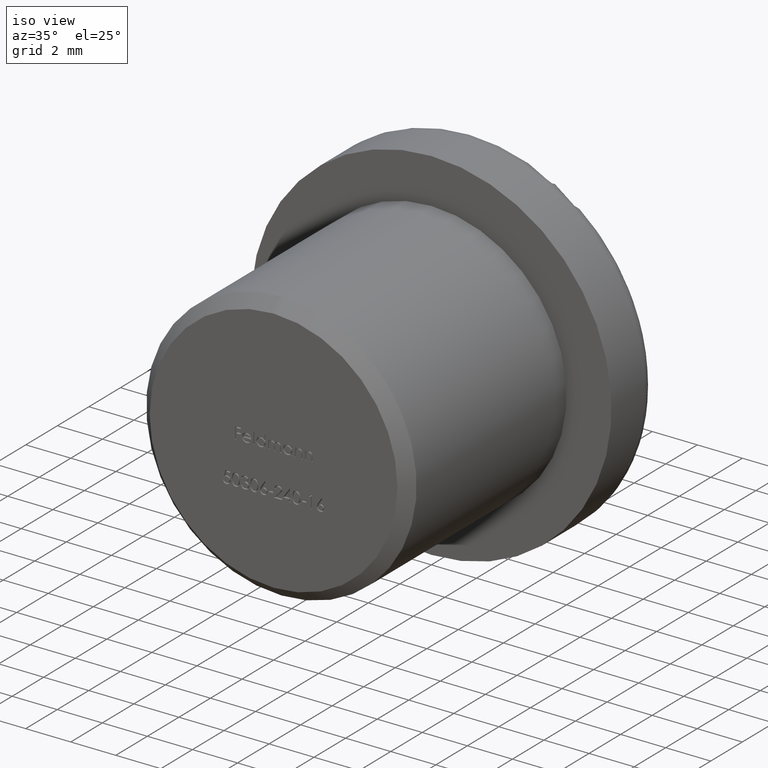
[diagram: clean part render]
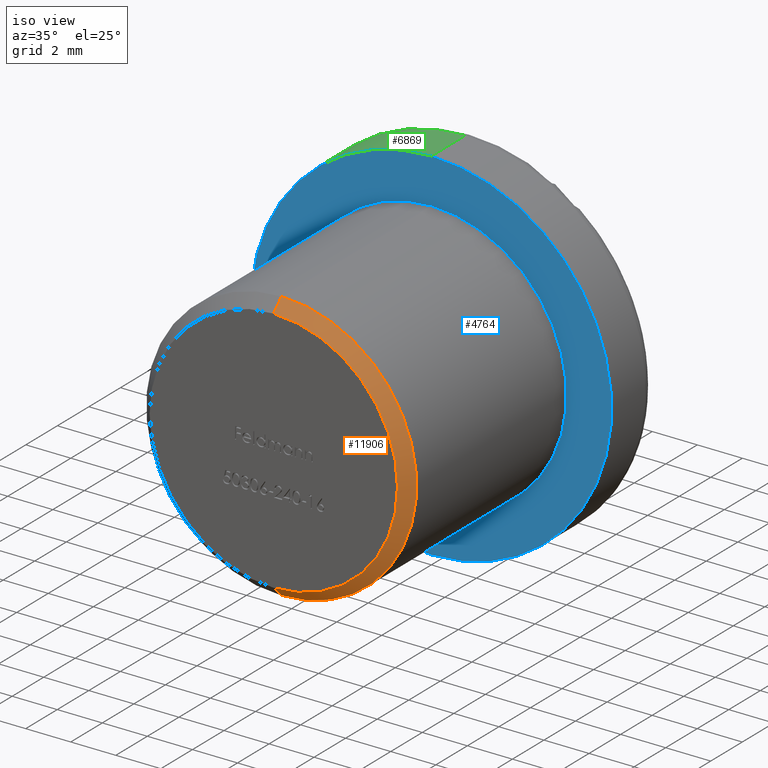
[diagram: same view with three faces highlighted in distinct colors, each labeled with its STEP entity id]
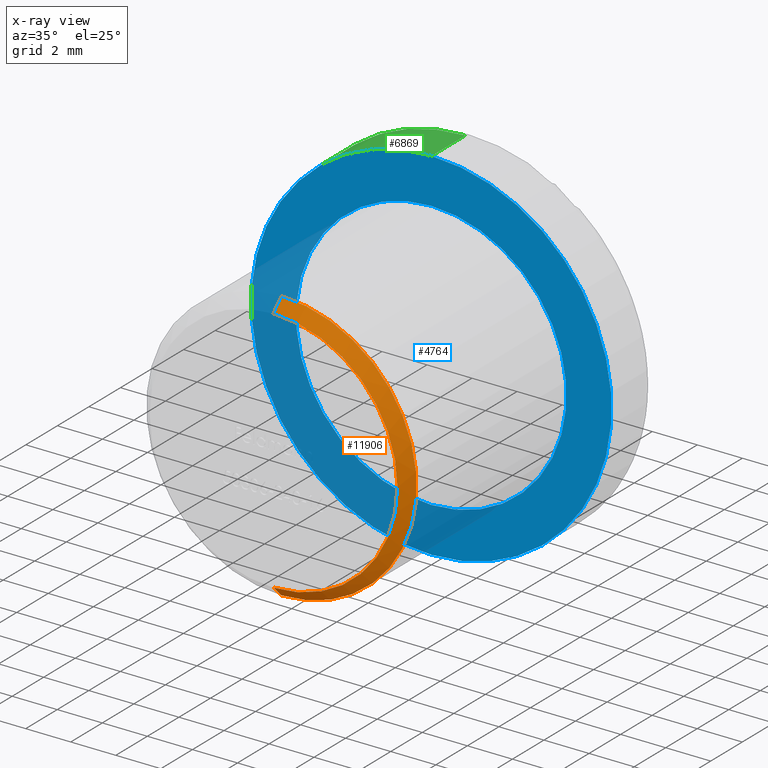
[diagram: x-ray of the same camera — body ghosted, the three highlighted faces saturated]
A machine part, iso view with three faces highlighted in distinct colors.
The next image is the same camera in x-ray (body ghosted, the three faces saturated) — at least one of them is partly hidden behind the body in this view.
Their STEP definitions:

[orange] entity #11906 — the highlighted conical surface has half-angle 45 deg.
#661 = VERTEX_POINT ( 'NONE', #1964 ) ;
#1562 = CARTESIAN_POINT ( 'NONE',  ( 0.0000000000000000000, 0.0000000000000000000, 5.500000000000000900 ) ) ;
#1799 = EDGE_CURVE ( 'NONE', #13992, #10031, #6250, .T. ) ;
#1964 = CARTESIAN_POINT ( 'NONE',  ( 7.347880794884119700E-016, 0.5000000000000030000, 6.000000000000000000 ) ) ;
#2244 = VECTOR ( 'NONE', #7391, 1000.000000000000100 ) ;
#3149 = ORIENTED_EDGE ( 'NONE', *, *, #7248, .F. ) ;
#3172 = AXIS2_PLACEMENT_3D ( 'NONE', #9606, #10791, #9501 ) ;
#3470 = CARTESIAN_POINT ( 'NONE',  ( 0.0000000000000000000, 0.5000000000000030000, 0.0000000000000000000 ) ) ;
#3807 = DIRECTION ( 'NONE',  ( 0.0000000000000000000, 1.000000000000000000, 0.0000000000000000000 ) ) ;
#3863 = EDGE_LOOP ( 'NONE', ( #12242, #13256, #8634, #3149 ) ) ;
#3931 = DIRECTION ( 'NONE',  ( 0.0000000000000000000, 0.7071067811865500200, 0.7071067811865451300 ) ) ;
#4116 = FACE_OUTER_BOUND ( 'NONE', #3863, .T. ) ;
#4397 = CONICAL_SURFACE ( 'NONE', #5898, 5.500000000000000900, 0.7853981633974447300 ) ;
#4434 = DIRECTION ( 'NONE',  ( 0.0000000000000000000, 0.0000000000000000000, -1.000000000000000000 ) ) ;
#4981 = DIRECTION ( 'NONE',  ( 0.0000000000000000000, 0.0000000000000000000, 1.000000000000000000 ) ) ;
#4993 = VERTEX_POINT ( 'NONE', #1562 ) ;
#5898 = AXIS2_PLACEMENT_3D ( 'NONE', #7320, #3807, #4981 ) ;
#6250 = LINE ( 'NONE', #7103, #2244 ) ;
#7103 = CARTESIAN_POINT ( 'NONE',  ( 6.735557395310443000E-016, 0.0000000000000000000, -5.500000000000000900 ) ) ;
#7248 = EDGE_CURVE ( 'NONE', #4993, #661, #11983, .T. ) ;
#7320 = CARTESIAN_POINT ( 'NONE',  ( 0.0000000000000000000, 0.0000000000000000000, 0.0000000000000000000 ) ) ;
#7391 = DIRECTION ( 'NONE',  ( 8.659560562354903300E-017, 0.7071067811865500200, -0.7071067811865451300 ) ) ;
#8634 = ORIENTED_EDGE ( 'NONE', *, *, #11612, .F. ) ;
#9238 = AXIS2_PLACEMENT_3D ( 'NONE', #3470, #14845, #4434 ) ;
#9501 = DIRECTION ( 'NONE',  ( 0.0000000000000000000, 0.0000000000000000000, -1.000000000000000000 ) ) ;
#9606 = CARTESIAN_POINT ( 'NONE',  ( 0.0000000000000000000, 0.0000000000000000000, 0.0000000000000000000 ) ) ;
#9690 = CARTESIAN_POINT ( 'NONE',  ( 0.0000000000000000000, 0.5000000000000030000, -6.000000000000000000 ) ) ;
#10031 = VERTEX_POINT ( 'NONE', #9690 ) ;
#10171 = CARTESIAN_POINT ( 'NONE',  ( 7.041719095097280900E-016, 0.0000000000000000000, -5.500000000000000900 ) ) ;
#10791 = DIRECTION ( 'NONE',  ( -0.0000000000000000000, -1.000000000000000000, -0.0000000000000000000 ) ) ;
#11492 = CIRCLE ( 'NONE', #9238, 6.000000000000000000 ) ;
#11612 = EDGE_CURVE ( 'NONE', #661, #10031, #11492, .T. ) ;
#11906 = ADVANCED_FACE ( 'NONE', ( #4116 ), #4397, .T. ) ;
#11983 = LINE ( 'NONE', #12099, #14324 ) ;
#12099 = CARTESIAN_POINT ( 'NONE',  ( 0.0000000000000000000, 0.0000000000000000000, 5.500000000000000900 ) ) ;
#12215 = CIRCLE ( 'NONE', #3172, 5.500000000000000900 ) ;
#12242 = ORIENTED_EDGE ( 'NONE', *, *, #12629, .F. ) ;
#12629 = EDGE_CURVE ( 'NONE', #13992, #4993, #12215, .T. ) ;
#13256 = ORIENTED_EDGE ( 'NONE', *, *, #1799, .T. ) ;
#13992 = VERTEX_POINT ( 'NONE', #10171 ) ;
#14324 = VECTOR ( 'NONE', #3931, 1000.000000000000100 ) ;
#14845 = DIRECTION ( 'NONE',  ( 0.0000000000000000000, 1.000000000000000000, 0.0000000000000000000 ) ) ;

[blue] entity #4764 — the highlighted planar face has unit normal (0, -1, -0).
#190 = PLANE ( 'NONE',  #3616 ) ;
#343 = DIRECTION ( 'NONE',  ( -0.0000000000000000000, -1.000000000000000000, -0.0000000000000000000 ) ) ;
#346 = ORIENTED_EDGE ( 'NONE', *, *, #7121, .T. ) ;
#452 = FACE_BOUND ( 'NONE', #6999, .T. ) ;
#962 = EDGE_CURVE ( 'NONE', #8084, #13981, #13905, .T. ) ;
#1143 = EDGE_CURVE ( 'NONE', #5689, #14756, #2445, .T. ) ;
#1179 = FACE_OUTER_BOUND ( 'NONE', #7856, .T. ) ;
#2128 = CARTESIAN_POINT ( 'NONE',  ( 0.0000000000000000000, 10.00000000000000000, 0.0000000000000000000 ) ) ;
#2331 = CARTESIAN_POINT ( 'NONE',  ( 9.797174393178825700E-016, 10.00000000000000000, 8.000000000000000000 ) ) ;
#2377 = CARTESIAN_POINT ( 'NONE',  ( 0.0000000000000000000, 10.00000000000000000, -6.000000000000000000 ) ) ;
#2445 = CIRCLE ( 'NONE', #5881, 6.000000000000000000 ) ;
#2769 = DIRECTION ( 'NONE',  ( 0.0000000000000000000, 0.0000000000000000000, -1.000000000000000000 ) ) ;
#2971 = CIRCLE ( 'NONE', #11552, 6.000000000000000000 ) ;
#3160 = CARTESIAN_POINT ( 'NONE',  ( 0.0000000000000000000, 10.00000000000000000, 0.0000000000000000000 ) ) ;
#3616 = AXIS2_PLACEMENT_3D ( 'NONE', #8329, #6953, #9299 ) ;
#4764 = ADVANCED_FACE ( 'NONE', ( #1179, #452 ), #190, .T. ) ;
#4824 = DIRECTION ( 'NONE',  ( 0.0000000000000000000, 0.0000000000000000000, -1.000000000000000000 ) ) ;
#5093 = AXIS2_PLACEMENT_3D ( 'NONE', #2128, #12635, #6931 ) ;
#5659 = CIRCLE ( 'NONE', #13413, 8.000000000000000000 ) ;
#5689 = VERTEX_POINT ( 'NONE', #2377 ) ;
#5881 = AXIS2_PLACEMENT_3D ( 'NONE', #8644, #7365, #2769 ) ;
#6931 = DIRECTION ( 'NONE',  ( 0.0000000000000000000, 0.0000000000000000000, -1.000000000000000000 ) ) ;
#6953 = DIRECTION ( 'NONE',  ( 0.0000000000000000000, -1.000000000000000000, -0.0000000000000000000 ) ) ;
#6999 = EDGE_LOOP ( 'NONE', ( #12396, #13447 ) ) ;
#7121 = EDGE_CURVE ( 'NONE', #13981, #8084, #5659, .T. ) ;
#7365 = DIRECTION ( 'NONE',  ( -0.0000000000000000000, -1.000000000000000000, -0.0000000000000000000 ) ) ;
#7417 = CARTESIAN_POINT ( 'NONE',  ( 0.0000000000000000000, 10.00000000000000000, -8.000000000000000000 ) ) ;
#7856 = EDGE_LOOP ( 'NONE', ( #14266, #346 ) ) ;
#8084 = VERTEX_POINT ( 'NONE', #7417 ) ;
#8329 = CARTESIAN_POINT ( 'NONE',  ( 6.000000000000000000, 10.00000000000000000, 0.0000000000000000000 ) ) ;
#8644 = CARTESIAN_POINT ( 'NONE',  ( 0.0000000000000000000, 10.00000000000000000, 0.0000000000000000000 ) ) ;
#9299 = DIRECTION ( 'NONE',  ( 0.0000000000000000000, 0.0000000000000000000, -1.000000000000000000 ) ) ;
#10642 = CARTESIAN_POINT ( 'NONE',  ( 7.347880794884119700E-016, 10.00000000000000000, 6.000000000000000000 ) ) ;
#11141 = DIRECTION ( 'NONE',  ( 0.0000000000000000000, 0.0000000000000000000, -1.000000000000000000 ) ) ;
#11287 = DIRECTION ( 'NONE',  ( -0.0000000000000000000, -1.000000000000000000, -0.0000000000000000000 ) ) ;
#11552 = AXIS2_PLACEMENT_3D ( 'NONE', #3160, #11287, #11141 ) ;
#12396 = ORIENTED_EDGE ( 'NONE', *, *, #1143, .F. ) ;
#12635 = DIRECTION ( 'NONE',  ( -0.0000000000000000000, -1.000000000000000000, -0.0000000000000000000 ) ) ;
#12751 = EDGE_CURVE ( 'NONE', #14756, #5689, #2971, .T. ) ;
#13413 = AXIS2_PLACEMENT_3D ( 'NONE', #14129, #343, #4824 ) ;
#13447 = ORIENTED_EDGE ( 'NONE', *, *, #12751, .F. ) ;
#13905 = CIRCLE ( 'NONE', #5093, 8.000000000000000000 ) ;
#13981 = VERTEX_POINT ( 'NONE', #2331 ) ;
#14129 = CARTESIAN_POINT ( 'NONE',  ( 0.0000000000000000000, 10.00000000000000000, 0.0000000000000000000 ) ) ;
#14266 = ORIENTED_EDGE ( 'NONE', *, *, #962, .T. ) ;
#14756 = VERTEX_POINT ( 'NONE', #10642 ) ;

[green] entity #6869 — the highlighted cylindrical surface (partial cylindrical patch) has radius 8 mm, axis along (-0, -1, -0).
#9 = DIRECTION ( 'NONE',  ( -0.0000000000000000000, -1.000000000000000000, -0.0000000000000000000 ) ) ;
#343 = DIRECTION ( 'NONE',  ( -0.0000000000000000000, -1.000000000000000000, -0.0000000000000000000 ) ) ;
#617 = EDGE_LOOP ( 'NONE', ( #7184, #13812, #12534, #12079 ) ) ;
#675 = EDGE_CURVE ( 'NONE', #12723, #8084, #13735, .T. ) ;
#1512 = CIRCLE ( 'NONE', #10745, 8.000000000000000000 ) ;
#1599 = EDGE_CURVE ( 'NONE', #3514, #12723, #1512, .T. ) ;
#2111 = CARTESIAN_POINT ( 'NONE',  ( 0.0000000000000000000, 0.0000000000000000000, 0.0000000000000000000 ) ) ;
#2331 = CARTESIAN_POINT ( 'NONE',  ( 9.797174393178825700E-016, 10.00000000000000000, 8.000000000000000000 ) ) ;
#3289 = DIRECTION ( 'NONE',  ( -0.0000000000000000000, -1.000000000000000000, -0.0000000000000000000 ) ) ;
#3514 = VERTEX_POINT ( 'NONE', #12573 ) ;
#3595 = EDGE_CURVE ( 'NONE', #3514, #13981, #7195, .T. ) ;
#4459 = DIRECTION ( 'NONE',  ( 0.0000000000000000000, 0.0000000000000000000, -1.000000000000000000 ) ) ;
#4824 = DIRECTION ( 'NONE',  ( 0.0000000000000000000, 0.0000000000000000000, -1.000000000000000000 ) ) ;
#5659 = CIRCLE ( 'NONE', #13413, 8.000000000000000000 ) ;
#6869 = ADVANCED_FACE ( 'NONE', ( #11825 ), #14868, .T. ) ;
#7121 = EDGE_CURVE ( 'NONE', #13981, #8084, #5659, .T. ) ;
#7184 = ORIENTED_EDGE ( 'NONE', *, *, #3595, .F. ) ;
#7195 = LINE ( 'NONE', #10328, #11728 ) ;
#7392 = CARTESIAN_POINT ( 'NONE',  ( 0.0000000000000000000, 12.15500349995852000, -8.000000000000000000 ) ) ;
#7417 = CARTESIAN_POINT ( 'NONE',  ( 0.0000000000000000000, 10.00000000000000000, -8.000000000000000000 ) ) ;
#7710 = AXIS2_PLACEMENT_3D ( 'NONE', #2111, #3289, #4459 ) ;
#7822 = DIRECTION ( 'NONE',  ( -0.0000000000000000000, -1.000000000000000000, -0.0000000000000000000 ) ) ;
#8084 = VERTEX_POINT ( 'NONE', #7417 ) ;
#8484 = VECTOR ( 'NONE', #7822, 1000.000000000000000 ) ;
#10328 = CARTESIAN_POINT ( 'NONE',  ( 9.797174393178825700E-016, 0.0000000000000000000, 8.000000000000000000 ) ) ;
#10506 = DIRECTION ( 'NONE',  ( 0.0000000000000000000, 0.0000000000000000000, -1.000000000000000000 ) ) ;
#10745 = AXIS2_PLACEMENT_3D ( 'NONE', #13779, #11511, #10506 ) ;
#11511 = DIRECTION ( 'NONE',  ( -0.0000000000000000000, -1.000000000000000000, -0.0000000000000000000 ) ) ;
#11728 = VECTOR ( 'NONE', #9, 1000.000000000000000 ) ;
#11825 = FACE_OUTER_BOUND ( 'NONE', #617, .T. ) ;
#12079 = ORIENTED_EDGE ( 'NONE', *, *, #7121, .F. ) ;
#12534 = ORIENTED_EDGE ( 'NONE', *, *, #675, .T. ) ;
#12573 = CARTESIAN_POINT ( 'NONE',  ( 9.797174393178825700E-016, 12.15500349995852000, 8.000000000000000000 ) ) ;
#12723 = VERTEX_POINT ( 'NONE', #7392 ) ;
#13413 = AXIS2_PLACEMENT_3D ( 'NONE', #14129, #343, #4824 ) ;
#13735 = LINE ( 'NONE', #14438, #8484 ) ;
#13779 = CARTESIAN_POINT ( 'NONE',  ( 0.0000000000000000000, 12.15500349995852000, 0.0000000000000000000 ) ) ;
#13812 = ORIENTED_EDGE ( 'NONE', *, *, #1599, .T. ) ;
#13981 = VERTEX_POINT ( 'NONE', #2331 ) ;
#14129 = CARTESIAN_POINT ( 'NONE',  ( 0.0000000000000000000, 10.00000000000000000, 0.0000000000000000000 ) ) ;
#14438 = CARTESIAN_POINT ( 'NONE',  ( 0.0000000000000000000, 0.0000000000000000000, -8.000000000000000000 ) ) ;
#14868 = CYLINDRICAL_SURFACE ( 'NONE', #7710, 8.000000000000000000 ) ;